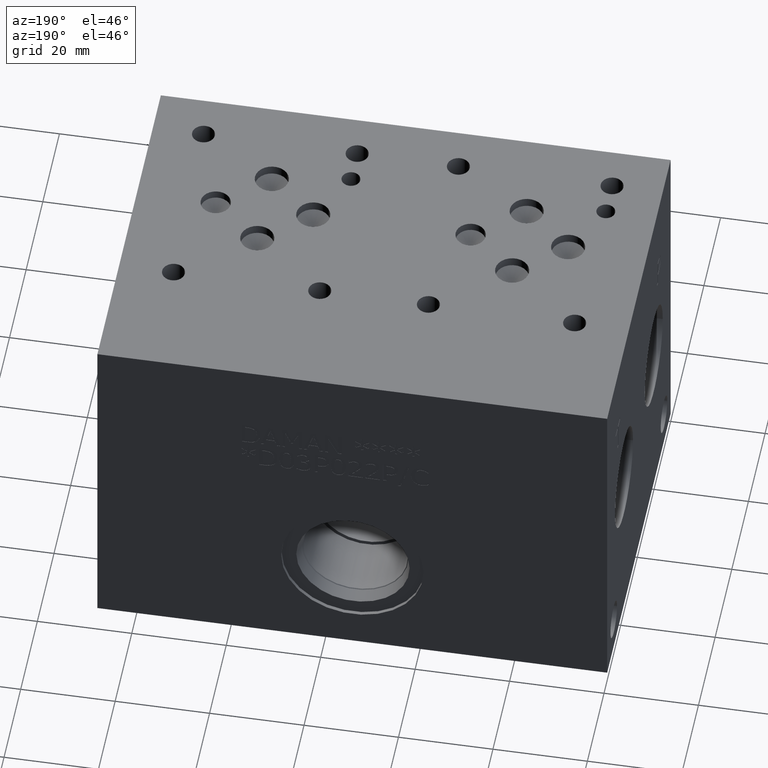
[diagram: clean part render]
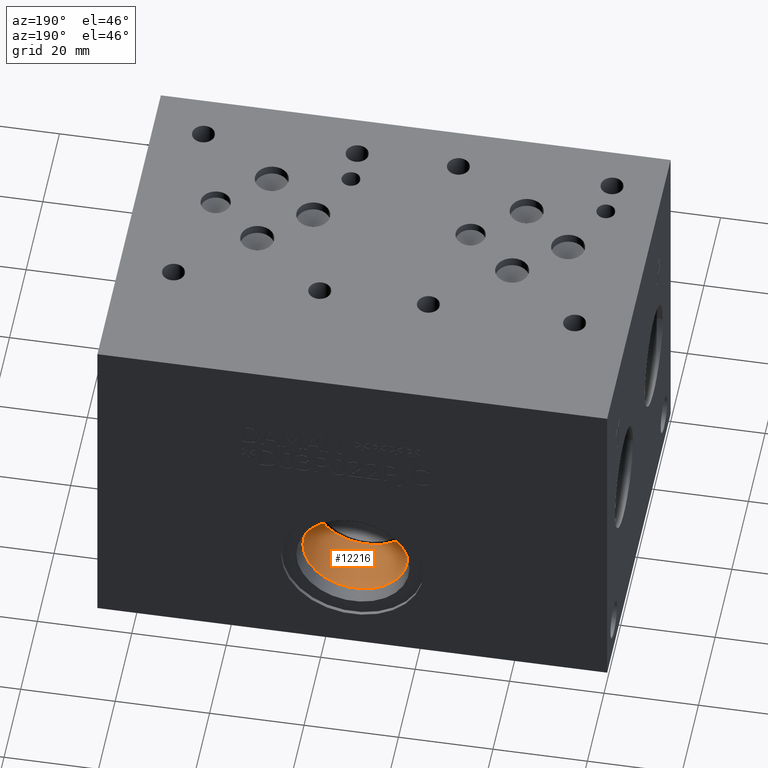
[diagram: same view with one face highlighted and labeled with its STEP entity id]
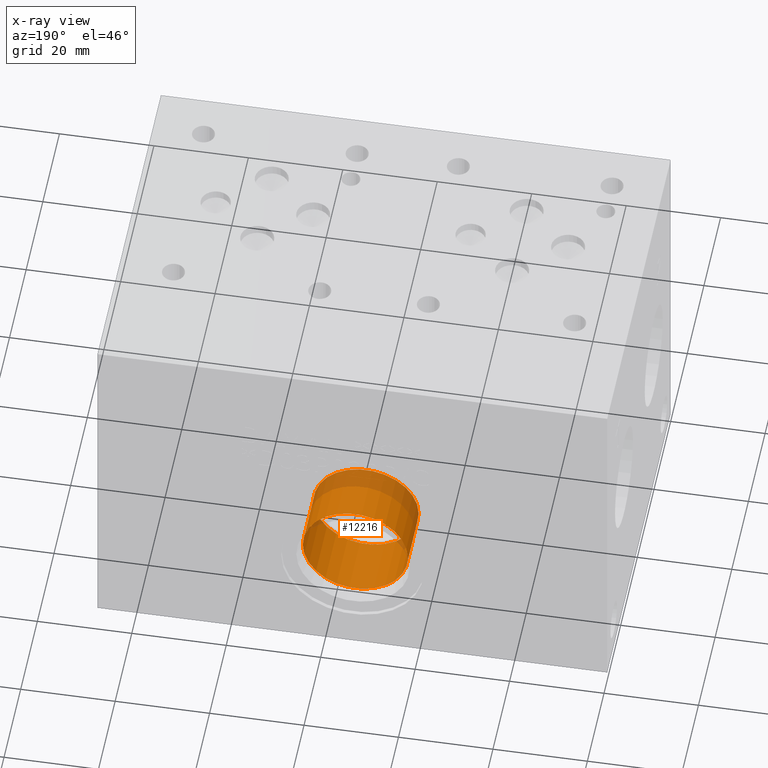
[diagram: x-ray of the same camera — body ghosted, the highlighted face saturated]
A machine part, auxiliary view. The second image highlights one B-rep face of the part: STEP entity #12216.
The next image is the same camera in x-ray: the body ghosted, the highlighted face saturated — about 21% of this face is hidden behind the body in this view.
In plain terms, the highlighted cylindrical surface (bore or boss wall) has radius 11.115 mm, axis along (0, -1, 0).
Its self-contained STEP definition (entity closure, byte-faithful):
#56=CYLINDRICAL_SURFACE('',#12729,11.115);
#152=CIRCLE('',#12727,11.115);
#153=CIRCLE('',#12728,11.115);
#154=CIRCLE('',#12730,11.115);
#155=CIRCLE('',#12731,11.115);
#1462=FACE_OUTER_BOUND('',#2156,.T.);
#2156=EDGE_LOOP('',(#10240,#10241,#10242,#10243,#10244,#10245));
#3358=LINE('',#20652,#4492);
#4492=VECTOR('',#14828,11.115);
#5542=VERTEX_POINT('',#20645);
#5543=VERTEX_POINT('',#20647);
#5544=VERTEX_POINT('',#20651);
#5545=VERTEX_POINT('',#20653);
#7177=EDGE_CURVE('',#5542,#5543,#152,.T.);
#7178=EDGE_CURVE('',#5543,#5542,#153,.T.);
#7179=EDGE_CURVE('',#5542,#5544,#3358,.T.);
#7180=EDGE_CURVE('',#5544,#5545,#154,.T.);
#7181=EDGE_CURVE('',#5545,#5544,#155,.T.);
#10240=ORIENTED_EDGE('',*,*,#7178,.F.);
#10241=ORIENTED_EDGE('',*,*,#7177,.F.);
#10242=ORIENTED_EDGE('',*,*,#7179,.T.);
#10243=ORIENTED_EDGE('',*,*,#7180,.T.);
#10244=ORIENTED_EDGE('',*,*,#7181,.T.);
#10245=ORIENTED_EDGE('',*,*,#7179,.F.);
#12216=ADVANCED_FACE('',(#1462),#56,.F.);
#12727=AXIS2_PLACEMENT_3D('',#20648,#14822,#14823);
#12728=AXIS2_PLACEMENT_3D('',#20649,#14824,#14825);
#12729=AXIS2_PLACEMENT_3D('',#20650,#14826,#14827);
#12730=AXIS2_PLACEMENT_3D('',#20654,#14829,#14830);
#12731=AXIS2_PLACEMENT_3D('',#20655,#14831,#14832);
#14822=DIRECTION('center_axis',(0.,-1.,0.));
#14823=DIRECTION('ref_axis',(1.,0.,0.));
#14824=DIRECTION('center_axis',(0.,-1.,0.));
#14825=DIRECTION('ref_axis',(1.,0.,0.));
#14826=DIRECTION('center_axis',(0.,-1.,0.));
#14827=DIRECTION('ref_axis',(1.,0.,0.));
#14828=DIRECTION('',(0.,-1.,0.));
#14829=DIRECTION('center_axis',(0.,-1.,0.));
#14830=DIRECTION('ref_axis',(1.,0.,0.));
#14831=DIRECTION('center_axis',(0.,-1.,0.));
#14832=DIRECTION('ref_axis',(1.,0.,0.));
#20645=CARTESIAN_POINT('',(42.86,72.525,23.0124));
#20647=CARTESIAN_POINT('',(65.09,72.525,23.0124));
#20648=CARTESIAN_POINT('Origin',(53.975,72.525,23.0124));
#20649=CARTESIAN_POINT('Origin',(53.975,72.525,23.0124));
#20650=CARTESIAN_POINT('Origin',(53.975,66.0275,23.0124));
#20651=CARTESIAN_POINT('',(42.86,59.53,23.0124));
#20652=CARTESIAN_POINT('',(42.86,66.0275,23.0124));
#20653=CARTESIAN_POINT('',(65.09,59.53,23.0124));
#20654=CARTESIAN_POINT('Origin',(53.975,59.53,23.0124));
#20655=CARTESIAN_POINT('Origin',(53.975,59.53,23.0124));